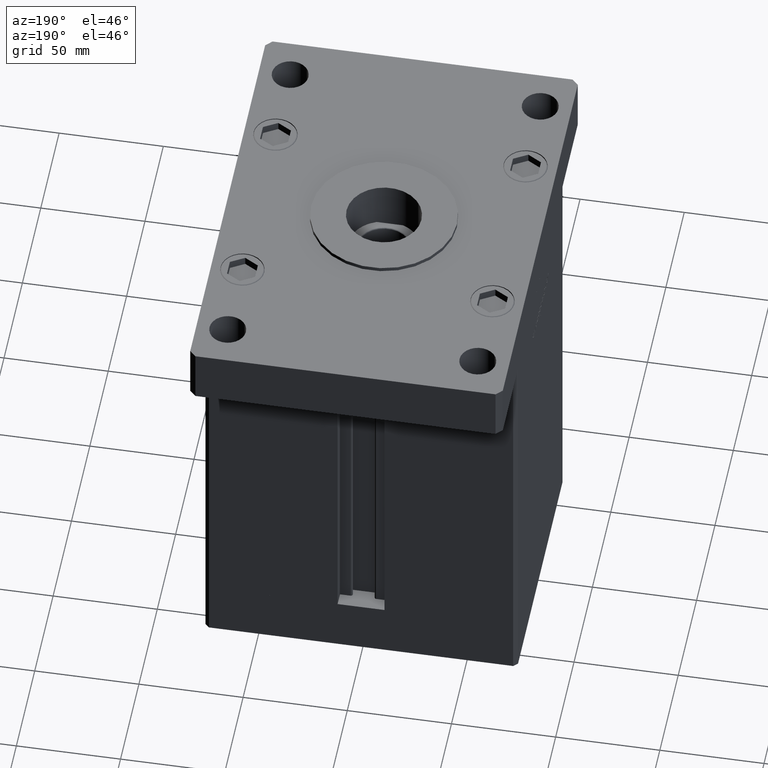
[diagram: clean part render]
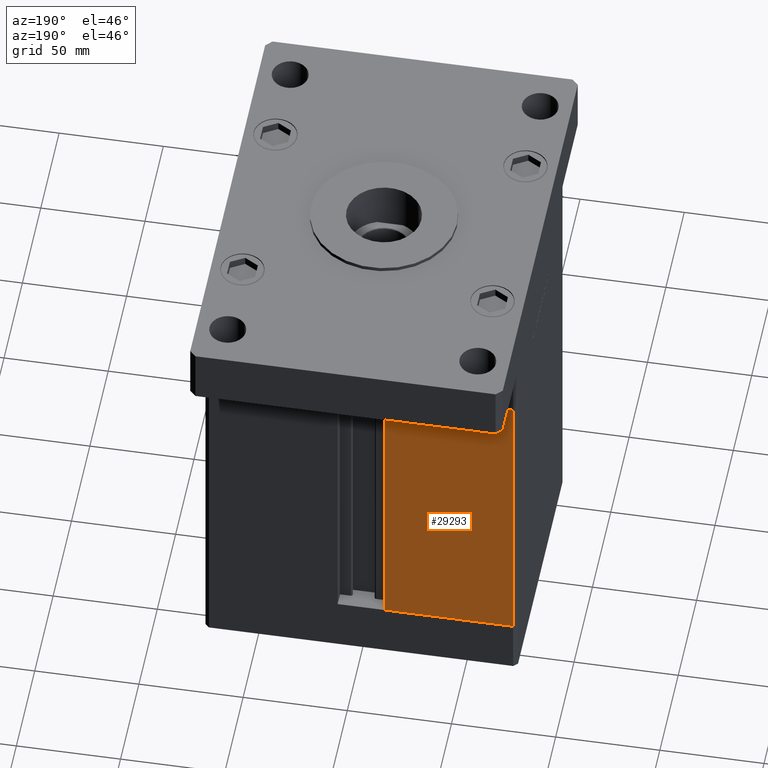
[diagram: same view with one face highlighted and labeled with its STEP entity id]
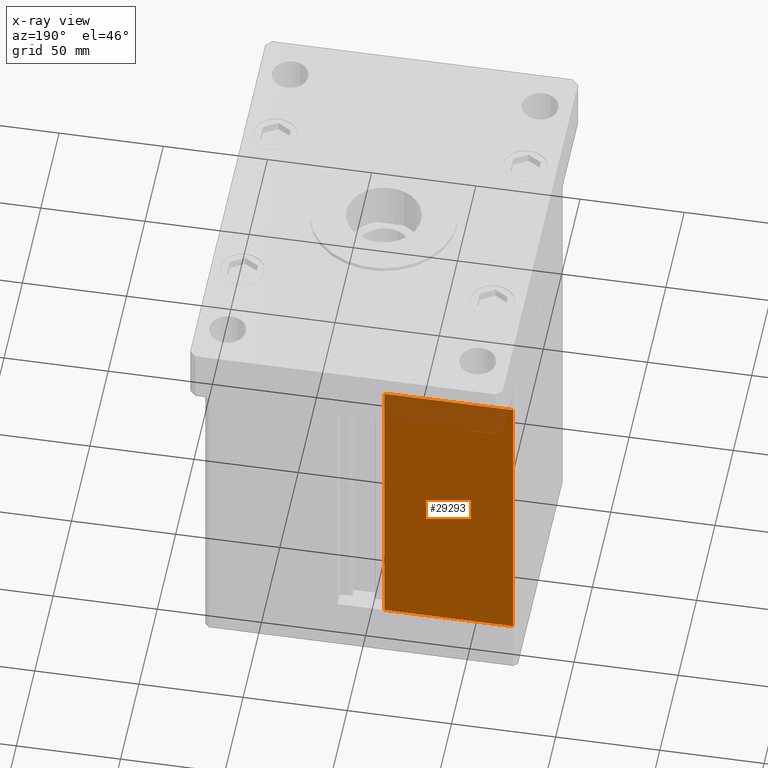
[diagram: x-ray of the same camera — body ghosted, the highlighted face saturated]
A machine part, auxiliary view. The second image highlights one B-rep face of the part: STEP entity #29293.
The next image is the same camera in x-ray: the body ghosted, the highlighted face saturated — about 11% of this face is hidden behind the body in this view.
In plain terms, the highlighted planar face has unit normal (-0, -1, 0).
Its self-contained STEP definition (entity closure, byte-faithful):
#626 = CARTESIAN_POINT ( 'NONE',  ( -11.25000000000000178, 62.49999999999999289, 0.000000000000000000 ) ) ;
#928 = CARTESIAN_POINT ( 'NONE',  ( -73.00000000000001421, 62.50000000000000000, 0.000000000000000000 ) ) ;
#1496 = ORIENTED_EDGE ( 'NONE', *, *, #24195, .T. ) ;
#4383 = PLANE ( 'NONE',  #23680 ) ;
#4829 = CARTESIAN_POINT ( 'NONE',  ( -11.25000000000000178, 62.49999999999999289, 147.0000000000000000 ) ) ;
#6312 = DIRECTION ( 'NONE',  ( -1.000000000000000000, 1.123707514802790025E-16, 0.000000000000000000 ) ) ;
#8477 = LINE ( 'NONE', #626, #11774 ) ;
#8867 = CARTESIAN_POINT ( 'NONE',  ( -11.25000000000000178, 62.49999999999999289, 147.0000000000000000 ) ) ;
#11421 = LINE ( 'NONE', #32257, #50289 ) ;
#11774 = VECTOR ( 'NONE', #29313, 1000.000000000000000 ) ;
#12014 = CARTESIAN_POINT ( 'NONE',  ( -73.00000000000001421, 62.50000000000000000, 147.0000000000000000 ) ) ;
#12754 = DIRECTION ( 'NONE',  ( 1.000000000000000000, -1.123707514802790025E-16, 0.000000000000000000 ) ) ;
#16607 = EDGE_CURVE ( 'NONE', #42393, #28899, #11421, .T. ) ;
#19709 = ORIENTED_EDGE ( 'NONE', *, *, #16607, .T. ) ;
#19971 = DIRECTION ( 'NONE',  ( -0.000000000000000000, -0.000000000000000000, -1.000000000000000000 ) ) ;
#23096 = VECTOR ( 'NONE', #19971, 1000.000000000000000 ) ;
#23428 = ORIENTED_EDGE ( 'NONE', *, *, #36817, .F. ) ;
#23680 = AXIS2_PLACEMENT_3D ( 'NONE', #46357, #49884, #12754 ) ;
#23778 = LINE ( 'NONE', #32443, #23096 ) ;
#24195 = EDGE_CURVE ( 'NONE', #52899, #51586, #29701, .T. ) ;
#25479 = FACE_OUTER_BOUND ( 'NONE', #53119, .T. ) ;
#28899 = VERTEX_POINT ( 'NONE', #928 ) ;
#29293 = ADVANCED_FACE ( 'NONE', ( #25479 ), #4383, .F. ) ;
#29313 = DIRECTION ( 'NONE',  ( -0.000000000000000000, -0.000000000000000000, 1.000000000000000000 ) ) ;
#29701 = LINE ( 'NONE', #8867, #50409 ) ;
#32257 = CARTESIAN_POINT ( 'NONE',  ( -11.25000000000000178, 62.49999999999999289, 0.000000000000000000 ) ) ;
#32443 = CARTESIAN_POINT ( 'NONE',  ( -73.00000000000001421, 62.50000000000000000, 147.0000000000000000 ) ) ;
#32775 = CARTESIAN_POINT ( 'NONE',  ( -11.25000000000000178, 62.49999999999999289, 0.000000000000000000 ) ) ;
#36817 = EDGE_CURVE ( 'NONE', #42393, #51586, #8477, .T. ) ;
#38881 = EDGE_CURVE ( 'NONE', #52899, #28899, #23778, .T. ) ;
#42393 = VERTEX_POINT ( 'NONE', #32775 ) ;
#42434 = DIRECTION ( 'NONE',  ( 1.000000000000000000, 0.000000000000000000, 0.000000000000000000 ) ) ;
#46357 = CARTESIAN_POINT ( 'NONE',  ( -11.25000000000000178, 62.49999999999999289, 147.0000000000000000 ) ) ;
#48193 = ORIENTED_EDGE ( 'NONE', *, *, #38881, .F. ) ;
#49884 = DIRECTION ( 'NONE',  ( -1.123707514802790025E-16, -1.000000000000000000, 0.000000000000000000 ) ) ;
#50289 = VECTOR ( 'NONE', #6312, 1000.000000000000000 ) ;
#50409 = VECTOR ( 'NONE', #42434, 1000.000000000000000 ) ;
#51586 = VERTEX_POINT ( 'NONE', #4829 ) ;
#52899 = VERTEX_POINT ( 'NONE', #12014 ) ;
#53119 = EDGE_LOOP ( 'NONE', ( #1496, #23428, #19709, #48193 ) ) ;